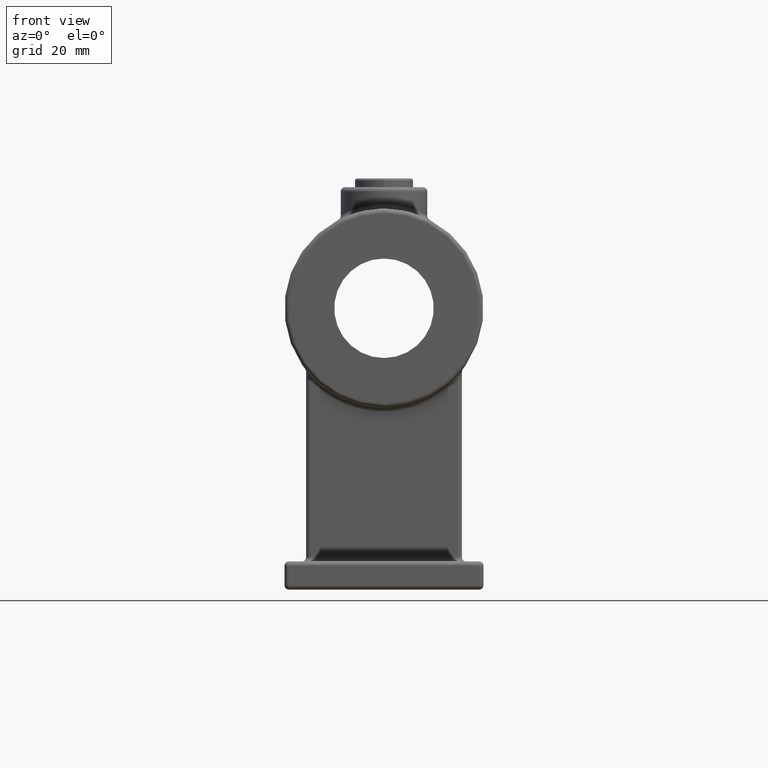
[diagram: clean part render]
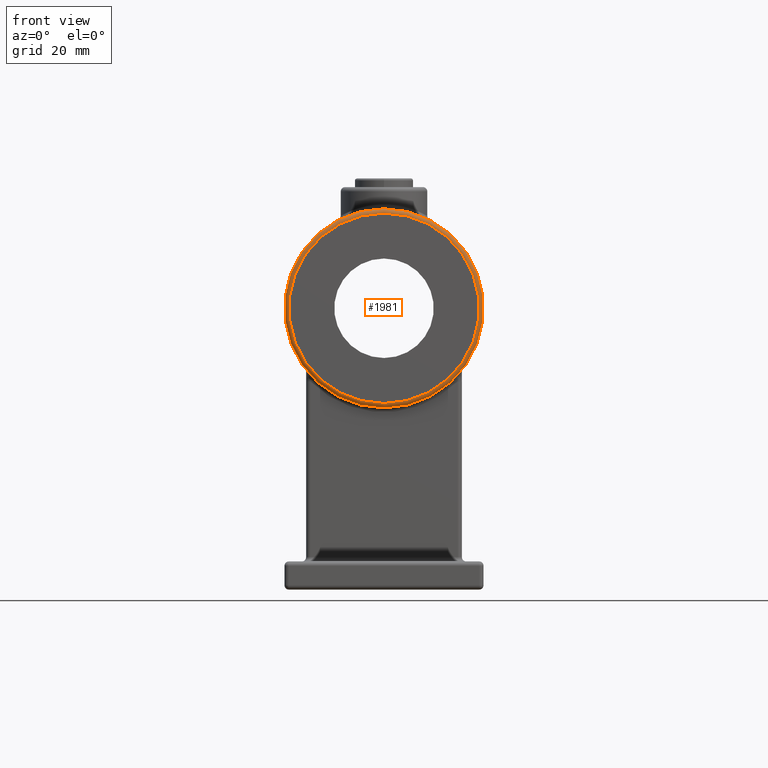
[diagram: same view with one face highlighted and labeled with its STEP entity id]
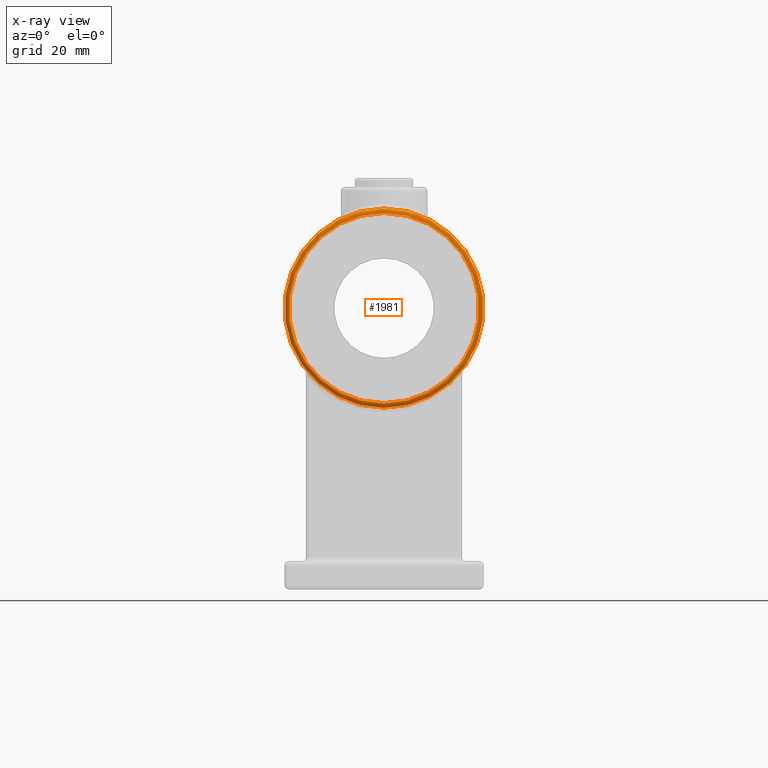
[diagram: x-ray of the same camera — body ghosted, the highlighted face saturated]
A machine part, front view. The second image highlights one B-rep face of the part: STEP entity #1981.
The next image is the same camera in x-ray: the body ghosted, the highlighted face saturated — about 0% of this face is hidden behind the body in this view.
In plain terms, the highlighted toroidal blend (fillet) surface has major radius 22 mm and minor (blend) radius 1 mm.
Its self-contained STEP definition (entity closure, byte-faithful):
#18 = VERTEX_POINT ( 'NONE', #13519 ) ;
#226 = AXIS2_PLACEMENT_3D ( 'NONE', #10745, #14364, #4615 ) ;
#448 = CIRCLE ( 'NONE', #10430, 22.00000000000000000 ) ;
#1274 = DIRECTION ( 'NONE',  ( 0.000000000000000000, 0.000000000000000000, -1.000000000000000000 ) ) ;
#1981 = ADVANCED_FACE ( 'NONE', ( #14248, #4975 ), #14818, .T. ) ;
#2642 = CARTESIAN_POINT ( 'NONE',  ( 0.000000000000000000, -20.00000000000000711, 65.00000000000000000 ) ) ;
#3691 = CIRCLE ( 'NONE', #14471, 23.00000000000000000 ) ;
#4615 = DIRECTION ( 'NONE',  ( 0.000000000000000000, 0.000000000000000000, -1.000000000000000000 ) ) ;
#4975 = FACE_OUTER_BOUND ( 'NONE', #11734, .T. ) ;
#6153 = CARTESIAN_POINT ( 'NONE',  ( 0.000000000000000000, -19.00000000000000355, 65.00000000000000000 ) ) ;
#6716 = EDGE_LOOP ( 'NONE', ( #10688 ) ) ;
#7369 = DIRECTION ( 'NONE',  ( -0.000000000000000000, 1.000000000000000000, -0.000000000000000000 ) ) ;
#10430 = AXIS2_PLACEMENT_3D ( 'NONE', #2642, #12721, #15030 ) ;
#10688 = ORIENTED_EDGE ( 'NONE', *, *, #13347, .F. ) ;
#10745 = CARTESIAN_POINT ( 'NONE',  ( 0.000000000000000000, -19.00000000000000355, 65.00000000000000000 ) ) ;
#11080 = CARTESIAN_POINT ( 'NONE',  ( 0.000000000000000000, -20.00000000000000711, 43.00000000000000000 ) ) ;
#11734 = EDGE_LOOP ( 'NONE', ( #14517 ) ) ;
#11765 = EDGE_CURVE ( 'NONE', #12883, #12883, #448, .T. ) ;
#12721 = DIRECTION ( 'NONE',  ( 0.000000000000000000, -1.000000000000000000, 0.000000000000000000 ) ) ;
#12883 = VERTEX_POINT ( 'NONE', #11080 ) ;
#13347 = EDGE_CURVE ( 'NONE', #18, #18, #3691, .T. ) ;
#13519 = CARTESIAN_POINT ( 'NONE',  ( 0.000000000000000000, -19.00000000000000355, 42.00000000000000000 ) ) ;
#14248 = FACE_OUTER_BOUND ( 'NONE', #6716, .T. ) ;
#14364 = DIRECTION ( 'NONE',  ( 0.000000000000000000, -1.000000000000000000, 0.000000000000000000 ) ) ;
#14471 = AXIS2_PLACEMENT_3D ( 'NONE', #6153, #7369, #1274 ) ;
#14517 = ORIENTED_EDGE ( 'NONE', *, *, #11765, .F. ) ;
#14818 = TOROIDAL_SURFACE ( 'NONE', #226, 22.00000000000000000, 1.000000000000000000 ) ;
#15030 = DIRECTION ( 'NONE',  ( 0.000000000000000000, 0.000000000000000000, -1.000000000000000000 ) ) ;